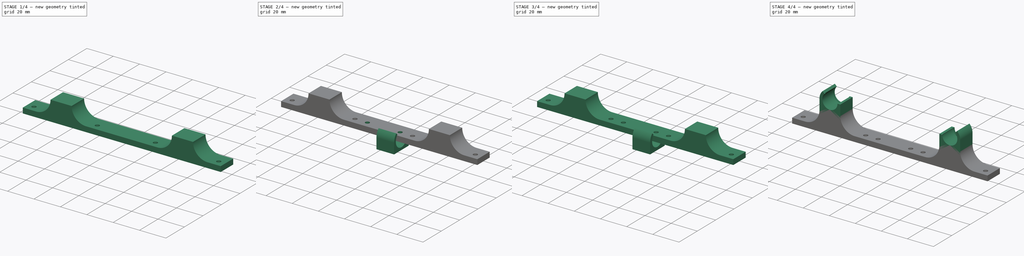
[diagram: build sequence overview — one tinted view per stage of 4, left to right]
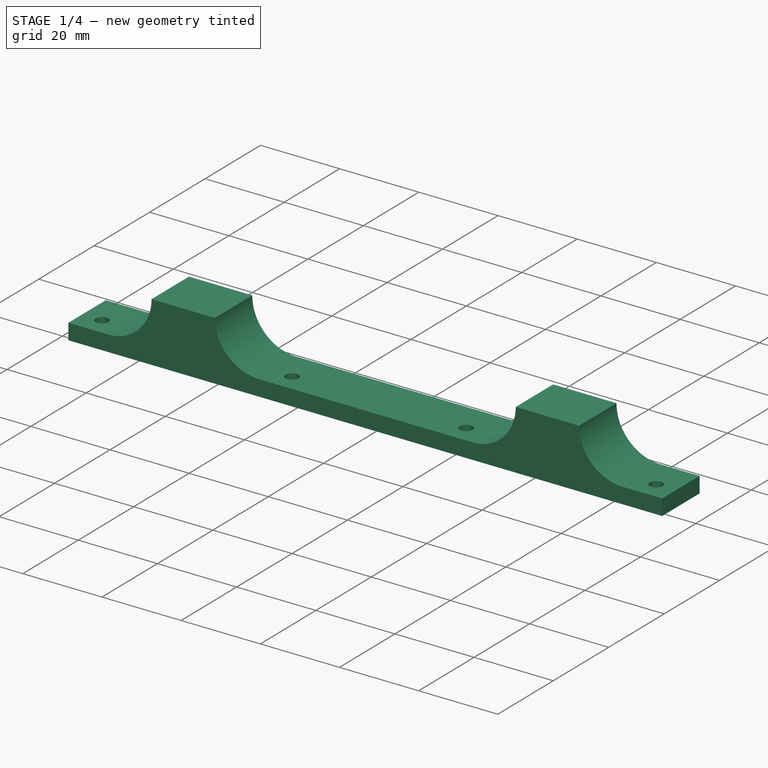
[diagram: stage 1 of 4 — iso view after this stage's code; geometry added in this stage tinted green]
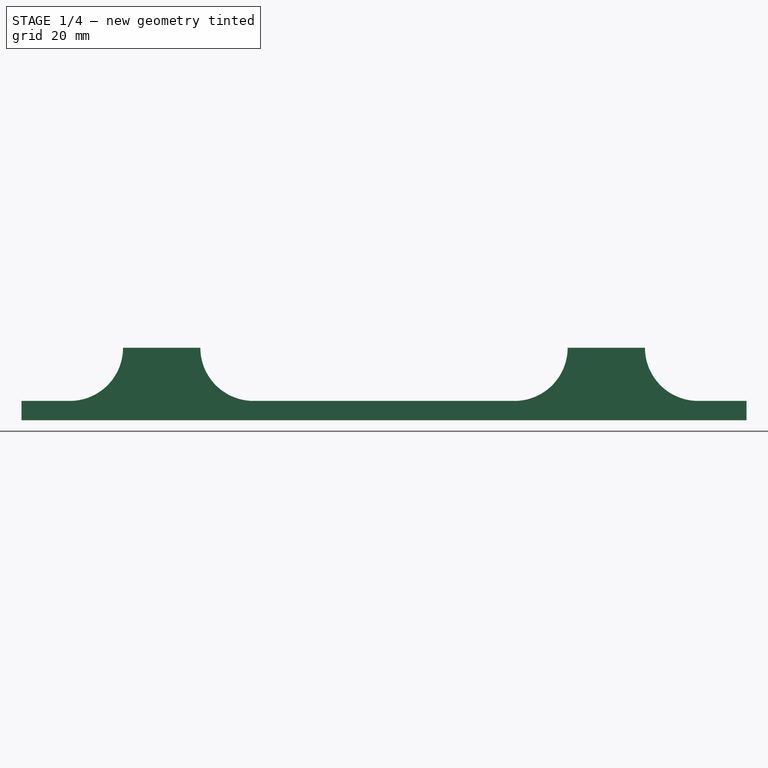
[diagram: stage 1 of 4 — front view after this stage's code; geometry added in this stage tinted green]
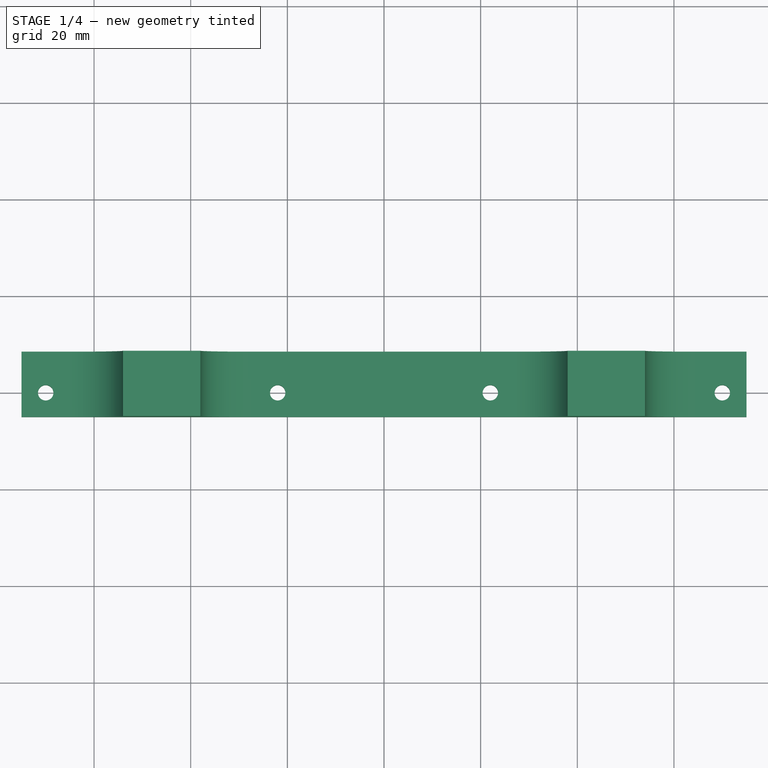
[diagram: stage 1 of 4 — top view after this stage's code; geometry added in this stage tinted green]
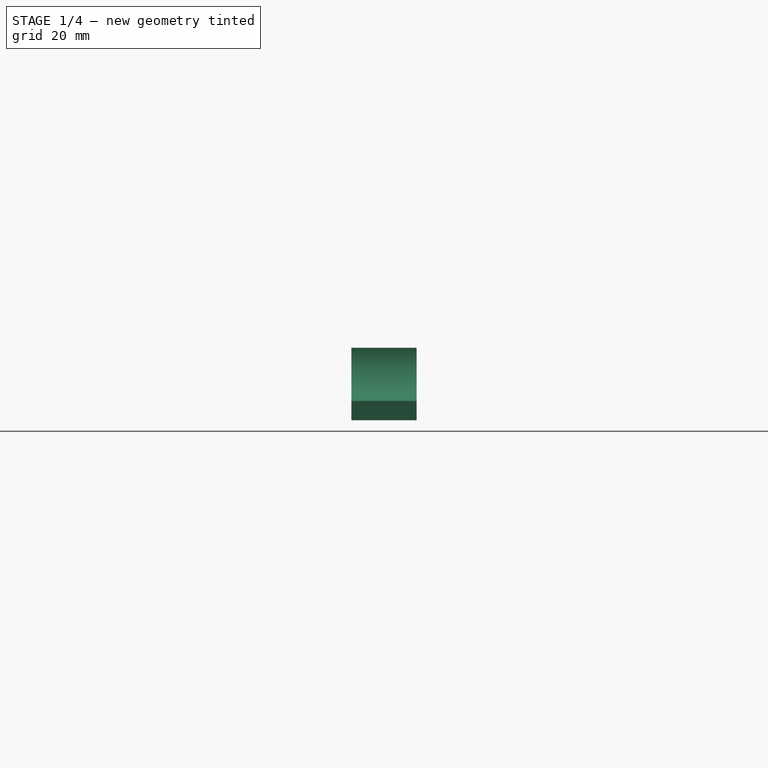
[diagram: stage 1 of 4 — right view after this stage's code; geometry added in this stage tinted green]
FCSTD DOCUMENT  (FreeCAD 0.18R14090 (Git))
Label: BedClamping1_Alt
License: All rights reserved
LicenseURL: http://en.wikipedia.org/wiki/All_rights_reserved
objects: Sketcher::SketchObject×7, PartDesign::Pad×5, PartDesign::Body×2, PartDesign::Pocket×2, PartDesign::Fillet×1, Part::Mirroring×1, Part::MultiFuse×1, App::Part×1, Part::FeaturePython×1
note: 27 computed .brp shape members not serialized (recipe doc carries the construction recipe); baked Part::Feature solids carry a one-line shape summary decoded from their .brp

FEATURE [Sketcher::SketchObject] Sketch  label="BC_BaseSketch"
  MapMode = 5
  Support = -> [XY_Plane001]
  sketch-geometry (8):
    g0: LineSegment StartX=-75 StartY=8.5 StartZ=0 EndX=75 EndY=8.5 EndZ=0
    g1: LineSegment StartX=75 StartY=8.5 StartZ=0 EndX=75 EndY=-5 EndZ=0
    g2: LineSegment StartX=75 StartY=-5 StartZ=0 EndX=-75 EndY=-5 EndZ=0
    g3: LineSegment StartX=-75 StartY=-5 StartZ=0 EndX=-75 EndY=8.5 EndZ=0
    g4: Circle CenterX=-70 CenterY=0 CenterZ=0 NormalX=0 NormalY=0 NormalZ=1 AngleXU=0 Radius=1.6
    g5: Circle CenterX=-22 CenterY=0 CenterZ=0 NormalX=0 NormalY=0 NormalZ=1 AngleXU=0 Radius=1.6
    g6: Circle CenterX=22 CenterY=0 CenterZ=0 NormalX=0 NormalY=0 NormalZ=1 AngleXU=0 Radius=1.6
    g7: Circle CenterX=70 CenterY=0 CenterZ=0 NormalX=0 NormalY=0 NormalZ=1 AngleXU=0 Radius=1.6
  constraints (21):
    c: Coincident(g0,g1)
    c: Coincident(g1,g2)
    c: Coincident(g2,g3)
    c: Coincident(g3,g0)
    c: Horizontal(g2)
    c: Vertical(g1)
    c: Symmetric(g0,g0,g-2)
    c: Distance(g0) = 150
    c: Distance(g3) = 13.5
    c: Symmetric(g6,g5,g-2)
    c: Symmetric(g7,g4,g-2)
    c: Distance(g7,g4) = 140
    c: Equal(g4,g5)
    c: Equal(g5,g6)
    c: Equal(g6,g7)
    c: Radius(g4) = 1.6
    c: Distance(g5,g6) = 44
    c: PointOnObject(g5,g-1)
    c: PointOnObject(g4,g-1)
    c: Vertical(g3)
    c: DistanceY(g-1,g2) = -5
FEATURE [PartDesign::Pad] Pad  label="BC_BasePad"
  Length = 4
  Length2 = 100
  Profile = -> Sketch
  Type = 0
FEATURE [Sketcher::SketchObject] Sketch001  label="BC_RodClipSketch"
  MapMode = 5
  Support = -> [XY_Plane001]
  sketch-geometry (8):
    g0: LineSegment StartX=-54 StartY=8.5 StartZ=0 EndX=-38 EndY=8.5 EndZ=0
    g1: LineSegment StartX=-38 StartY=8.5 StartZ=0 EndX=-38 EndY=-5 EndZ=0
    g2: LineSegment StartX=-38 StartY=-5 StartZ=0 EndX=-54 EndY=-5 EndZ=0
    g3: LineSegment StartX=-54 StartY=-5 StartZ=0 EndX=-54 EndY=8.5 EndZ=0
    g4: LineSegment StartX=38 StartY=8.5 StartZ=0 EndX=54 EndY=8.5 EndZ=0
    g5: LineSegment StartX=54 StartY=8.5 StartZ=0 EndX=54 EndY=-5 EndZ=0
    g6: LineSegment StartX=54 StartY=-5 StartZ=0 EndX=38 EndY=-5 EndZ=0
    g7: LineSegment StartX=38 StartY=-5 StartZ=0 EndX=38 EndY=8.5 EndZ=0
  constraints (23):
    c: Coincident(g0,g1)
    c: Coincident(g1,g2)
    c: Coincident(g2,g3)
    c: Coincident(g3,g0)
    c: Horizontal(g0)
    c: Horizontal(g2)
    c: Vertical(g1)
    c: Coincident(g4,g5)
    c: Coincident(g5,g6)
    c: Coincident(g6,g7)
    c: Coincident(g7,g4)
    c: Horizontal(g4)
    c: Vertical(g7)
    c: Equal(g1,g7)
    c: Symmetric(g0,g4,g-2)
    c: Equal(g4,g0)
    c: Distance(g0) = 16
    c: Distance(g3) = 13.5
    c: Distance(g2,g5) = 108
    c: Vertical(g5)
    c: Vertical(g3)
    c: Horizontal(g6)
    c: DistanceY(g-1,g2) = -5
FEATURE [PartDesign::Pad] Pad001  label="BC_RodClipPad"
  BaseFeature = -> Pad
  Length = 15
  Length2 = 100
  Profile = -> Sketch001
  Type = 0
FEATURE [PartDesign::Fillet] Fillet  label="BC_RodClipFillet"
  Base = -> Pad001 [Edge13,Edge40,Edge41,Edge69]
  BaseFeature = -> Pad001
  Radius = 10.99
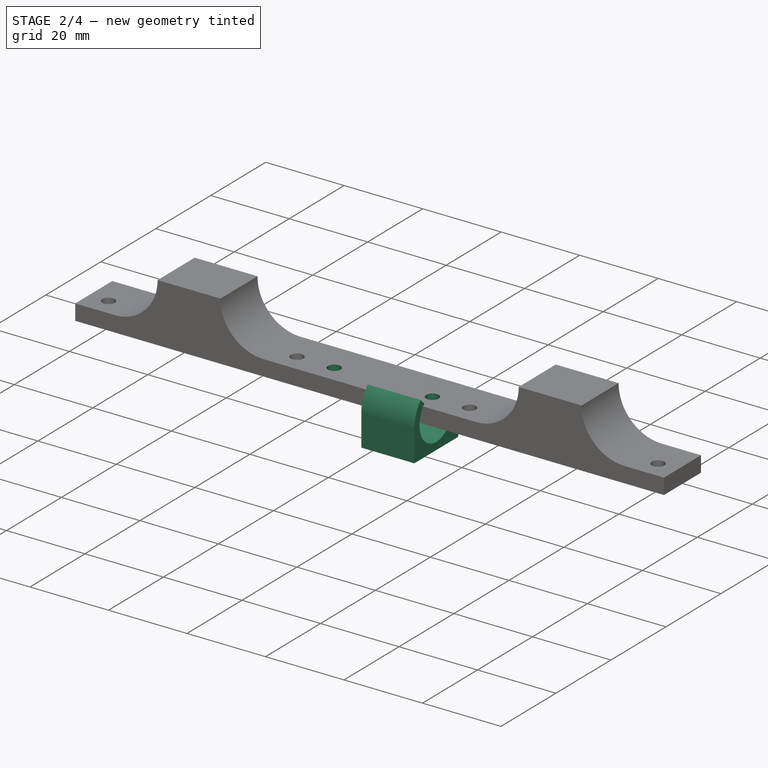
[diagram: stage 2 of 4 — iso view after this stage's code; geometry added in this stage tinted green]
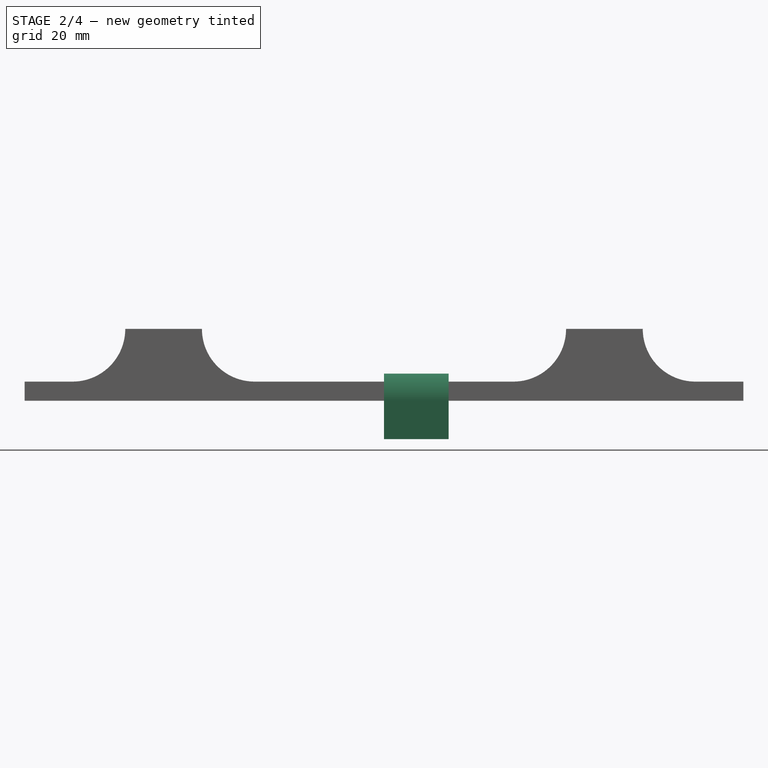
[diagram: stage 2 of 4 — front view after this stage's code; geometry added in this stage tinted green]
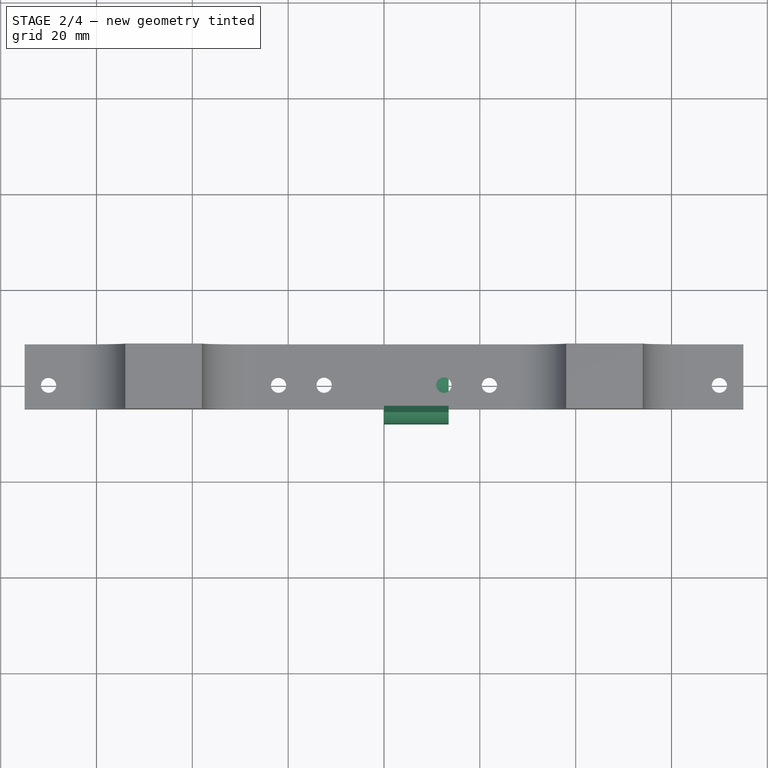
[diagram: stage 2 of 4 — top view after this stage's code; geometry added in this stage tinted green]
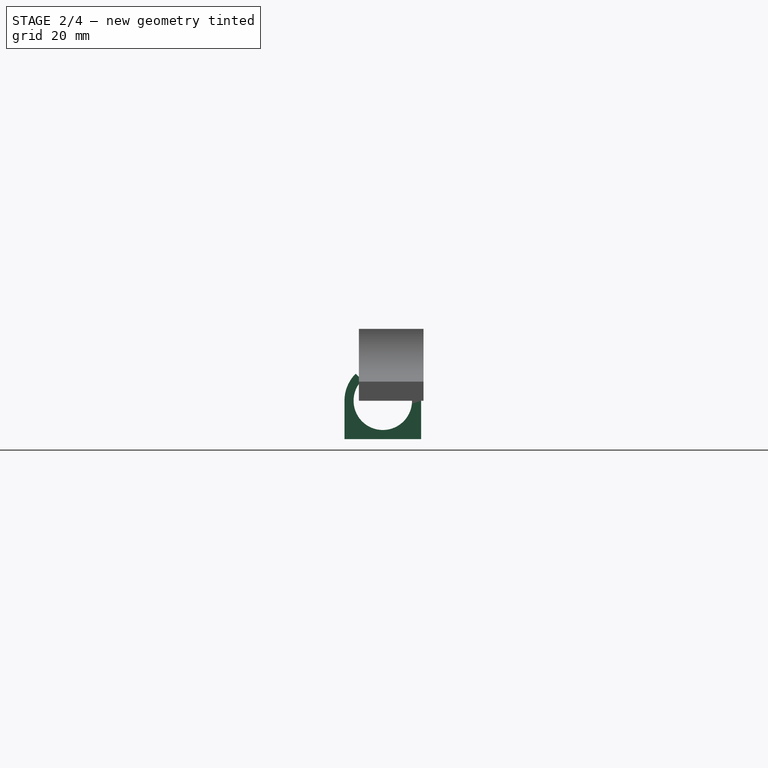
[diagram: stage 2 of 4 — right view after this stage's code; geometry added in this stage tinted green]
FEATURE [Sketcher::SketchObject] Sketch003  label="ClipSketch"
  MapMode = 5
  Placement = pos=(0,0,0) rot=(0.57735,0.57735,0.57735;2.0944rad)
  Support = -> [YZ_Plane002]
  sketch-geometry (8):
    g0: LineSegment StartX=-8 StartY=0 StartZ=0 EndX=-8 EndY=-8 EndZ=0
    g1: LineSegment StartX=8 StartY=0 StartZ=0 EndX=8 EndY=-8 EndZ=0
    g2: LineSegment StartX=-8 StartY=-8 StartZ=0 EndX=8 EndY=-8 EndZ=0
    g3: ArcOfCircle CenterX=0 CenterY=0 CenterZ=0 NormalX=0 NormalY=0 NormalZ=1 AngleXU=0 Radius=8 StartAngle=2.35619 EndAngle=3.14159
    g4: ArcOfCircle CenterX=0 CenterY=0 CenterZ=0 NormalX=0 NormalY=0 NormalZ=1 AngleXU=0 Radius=6.1 StartAngle=2.35619 EndAngle=3.14159
    g5: ArcOfCircle CenterX=0 CenterY=0 CenterZ=0 NormalX=0 NormalY=0 NormalZ=1 AngleXU=0 Radius=6.1 StartAngle=3.14159 EndAngle=6.28319
    g6: LineSegment StartX=-5.65685 StartY=5.65685 StartZ=0 EndX=-4.31335 EndY=4.31335 EndZ=0
    g7: LineSegment StartX=8 StartY=0 StartZ=0 EndX=6.1 EndY=0 EndZ=0
  constraints (22):
    c: Symmetric(g0,g1,g-2)
    c: Symmetric(g0,g1,g-2)
    c: PointOnObject(g0,g-1)
    c: Vertical(g0)
    c: Coincident(g2,g0)
    c: Coincident(g2,g1)
    c: Distance(g1) = 8
    c: Coincident(g3,g-1)
    c: Coincident(g3,g0)
    c: Radius(g3) = 8
    c: Angle(g3) = 0.785398
    c: Coincident(g4,g3)
    c: PointOnObject(g4,g-1)
    c: PointOnObject(g5,g-1)
    c: Coincident(g5,g3)
    c: Coincident(g5,g4)
    c: Coincident(g6,g3)
    c: Coincident(g6,g4)
    c: Coincident(g7,g1)
    c: Coincident(g7,g5)
    c: Radius(g5) = 6.1
    c: Perpendicular(g3,g6)
FEATURE [PartDesign::Pad] Pad002  label="ClipPad"
  Length = 13.5
  Length2 = 100
  Placement = pos=(0,0,0) rot=(0.57735,0.57735,0.57735;2.0944rad)
  Profile = -> Sketch003
  Type = 0
FEATURE [Sketcher::SketchObject] Sketch014  label="BC_BeltTensionerClipNutSketch"
  MapMode = 5
  Support = -> [XY_Plane001]
  sketch-geometry (14):
    g0: LineSegment StartX=-12.5 StartY=-3.23316 StartZ=0 EndX=-9.7 EndY=-1.61658 EndZ=0
    g1: LineSegment StartX=-9.7 StartY=-1.61658 StartZ=0 EndX=-9.7 EndY=1.61658 EndZ=0
    g2: LineSegment StartX=-9.7 StartY=1.61658 StartZ=0 EndX=-12.5 EndY=3.23316 EndZ=0
    g3: LineSegment StartX=-12.5 StartY=3.23316 StartZ=0 EndX=-15.3 EndY=1.61658 EndZ=0
    g4: LineSegment StartX=-15.3 StartY=1.61658 StartZ=0 EndX=-15.3 EndY=-1.61658 EndZ=0
    g5: LineSegment StartX=-15.3 StartY=-1.61658 StartZ=0 EndX=-12.5 EndY=-3.23316 EndZ=0
    g6: Circle [constr] CenterX=-12.5 CenterY=0 CenterZ=0 NormalX=0 NormalY=0 NormalZ=1 AngleXU=0 Radius=3.23316
    g7: LineSegment StartX=12.5 StartY=-3.23316 StartZ=0 EndX=15.3 EndY=-1.61658 EndZ=0
    g8: LineSegment StartX=15.3 StartY=-1.61658 StartZ=0 EndX=15.3 EndY=1.61658 EndZ=0
    g9: LineSegment StartX=15.3 StartY=1.61658 StartZ=0 EndX=12.5 EndY=3.23316 EndZ=0
    g10: LineSegment StartX=12.5 StartY=3.23316 StartZ=0 EndX=9.7 EndY=1.61658 EndZ=0
    g11: LineSegment StartX=9.7 StartY=1.61658 StartZ=0 EndX=9.7 EndY=-1.61658 EndZ=0
    g12: LineSegment StartX=9.7 StartY=-1.61658 StartZ=0 EndX=12.5 EndY=-3.23316 EndZ=0
    g13: Circle [constr] CenterX=12.5 CenterY=0 CenterZ=0 NormalX=0 NormalY=0 NormalZ=1 AngleXU=0 Radius=3.23316
  constraints (33):
    c: Coincident(g0,g1)
    c: Coincident(g1,g2)
    c: Coincident(g2,g3)
    c: Coincident(g3,g4)
    c: Coincident(g4,g5)
    c: Coincident(g5,g0)
    c: Equal(g0, g1-g5) x5
    c: PointOnObject(g0,g6)
    c: PointOnObject(g1,g6)
    c: PointOnObject(g2,g6)
    c: PointOnObject(g3,g6)
    c: PointOnObject(g4,g6)
    c: PointOnObject(g5,g6)
    c: PointOnObject(g6,g-1)
    c: Coincident(g7,g8)
    c: Coincident(g8,g9)
    c: Coincident(g9,g10)
    c: Coincident(g10,g11)
    c: Coincident(g11,g12)
    c: Coincident(g12,g7)
    c: Equal(g7, g8-g12) x5
    c: PointOnObject(g7,g13)
    c: PointOnObject(g8,g13)
    c: PointOnObject(g9,g13)
    c: PointOnObject(g10,g13)
    c: PointOnObject(g11,g13)
    c: PointOnObject(g12,g13)
    c: Equal(g1,g11)
    c: Vertical(g1)
    c: Vertical(g11)
    c: Distance(g1,g3) = 5.6
    c: Symmetric(g13,g6,g-2)
    c: Distance(g6,g13) = 25
FEATURE [PartDesign::Pocket] Pocket  label="BC_BeltTensionerClipNutPocket"
  BaseFeature = -> Fillet
  Length = 2.5
  Length2 = 100
  Profile = -> Sketch014
  Reversed = true
  Type = 0
FEATURE [Sketcher::SketchObject] Sketch015  label="BC_BeltTensionerClipHoleSketch"
  MapMode = 5
  Support = -> [XY_Plane001]
  sketch-geometry (2):
    g0: Circle CenterX=-12.5 CenterY=0 CenterZ=0 NormalX=0 NormalY=0 NormalZ=1 AngleXU=0 Radius=1.6
    g1: Circle CenterX=12.5 CenterY=0 CenterZ=0 NormalX=0 NormalY=0 NormalZ=1 AngleXU=0 Radius=1.6
  constraints (5):
    c: PointOnObject(g0,g-1)
    c: Equal(g1,g0)
    c: Radius(g0) = 1.6
    c: Symmetric(g0,g1,g-2)
    c: Distance(g0,g1) = 25
FEATURE [PartDesign::Pocket] Pocket001  label="BC_BeltTensionerClipHolePocket"
  BaseFeature = -> Pocket
  Length = 5
  Length2 = 100
  Profile = -> Sketch015
  Reversed = true
  Type = 1
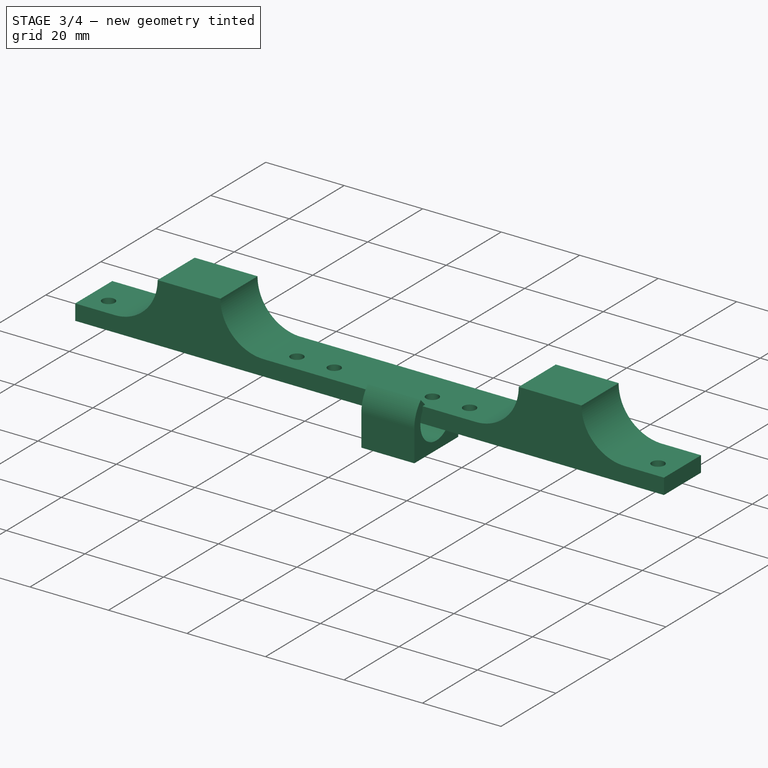
[diagram: stage 3 of 4 — iso view after this stage's code; geometry added in this stage tinted green]
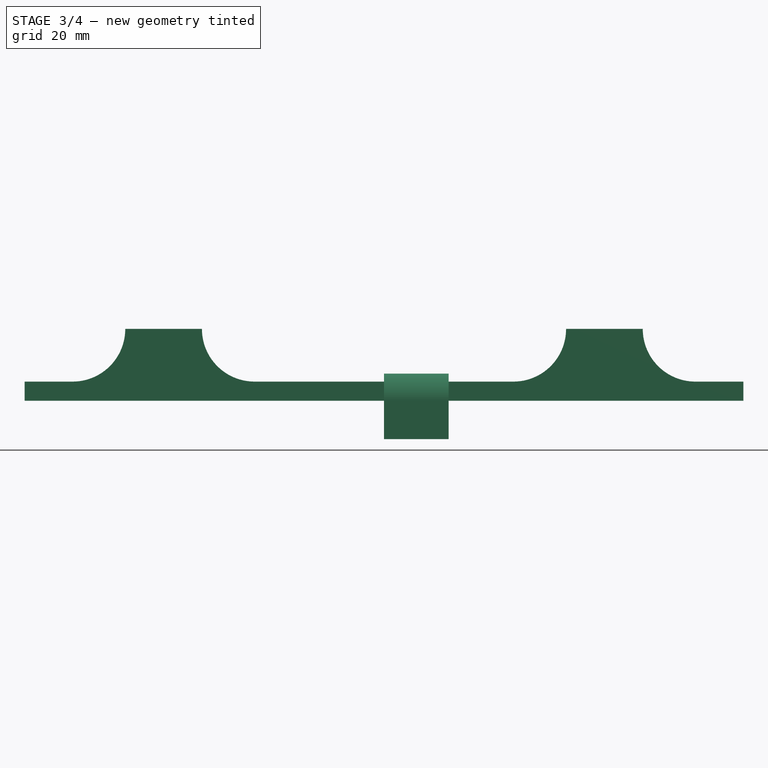
[diagram: stage 3 of 4 — front view after this stage's code; geometry added in this stage tinted green]
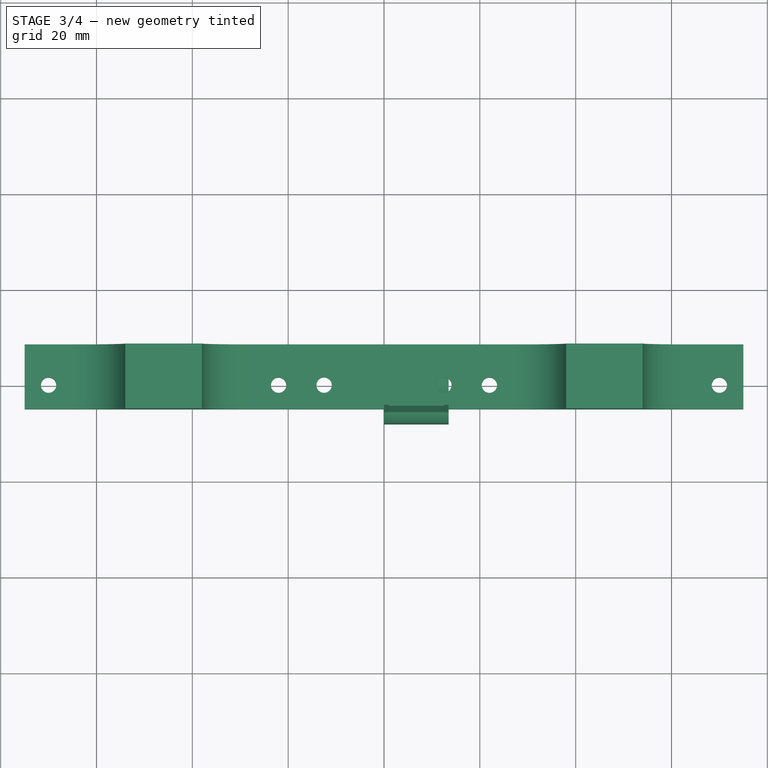
[diagram: stage 3 of 4 — top view after this stage's code; geometry added in this stage tinted green]
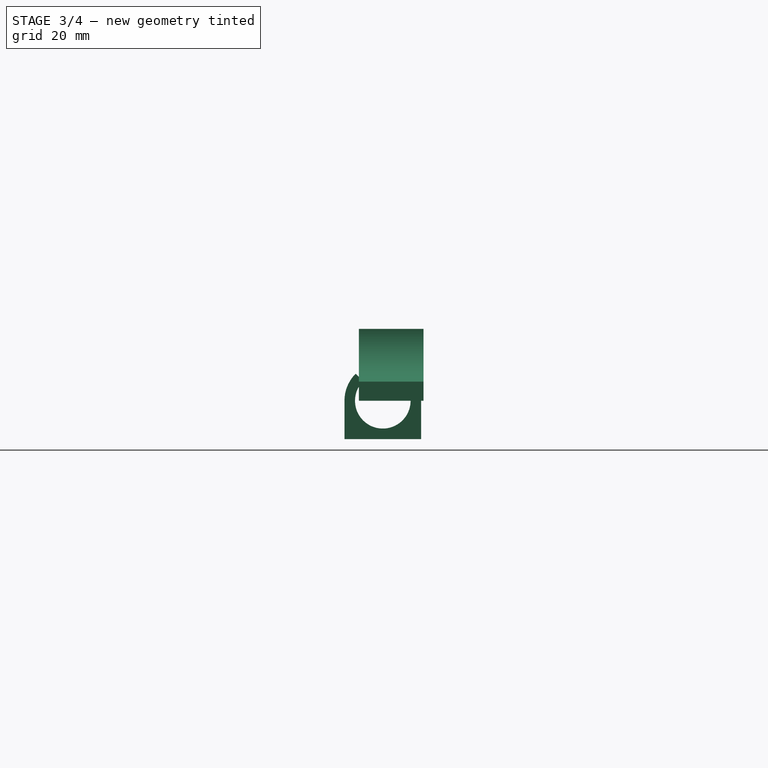
[diagram: stage 3 of 4 — right view after this stage's code; geometry added in this stage tinted green]
FEATURE [Sketcher::SketchObject] Sketch002  label="ClipNotch1Sketch"
  ExternalGeometry = -> [Pad002]
  MapMode = 5
  Placement = pos=(0,0,0) rot=(0.57735,0.57735,0.57735;2.0944rad)
  Support = -> [YZ_Plane002]
  sketch-geometry (4):
    g0: ArcOfCircle CenterX=0 CenterY=0 CenterZ=0 NormalX=0 NormalY=0 NormalZ=1 AngleXU=0 Radius=5.8 StartAngle=2.35619 EndAngle=6.28319
    g1: ArcOfCircle CenterX=0 CenterY=0 CenterZ=0 NormalX=0 NormalY=0 NormalZ=1 AngleXU=0 Radius=6.1 StartAngle=2.35619 EndAngle=6.28319
    g2: LineSegment StartX=-4.10122 StartY=4.10122 StartZ=0 EndX=-4.31335 EndY=4.31335 EndZ=0
    g3: LineSegment StartX=5.8 StartY=0 StartZ=0 EndX=6.1 EndY=0 EndZ=0
  constraints (11):
    c: Coincident(g1,g-4)
    c: Coincident(g1,g-3)
    c: Coincident(g2,g1)
    c: Perpendicular(g1,g2)
    c: Coincident(g3,g1)
    c: Coincident(g0,g3)
    c: Coincident(g0,g2)
    c: Coincident(g0,g-1)
    c: PointOnObject(g0,g-1)
    c: Perpendicular(g1,g3)
    c: Radius(g0) = 5.8
FEATURE [PartDesign::Pad] Pad003  label="ClipNotch1Pad"
  BaseFeature = -> Pad002
  Length = 1
  Length2 = 100
  Placement = pos=(0,0,0) rot=(0.57735,0.57735,0.57735;2.0944rad)
  Profile = -> Sketch002
  Type = 0
FEATURE [Sketcher::SketchObject] Sketch013  label="ClipNotch2Sketch"
  ExternalGeometry = -> [Pad003]
  MapMode = 5
  Placement = pos=(13.5,-2e-12,2e-12) rot=(0.57735,0.57735,0.57735;2.0944rad)
  Support = -> [Pad003]
  sketch-geometry (4):
    g0: ArcOfCircle CenterX=0 CenterY=0 CenterZ=0 NormalX=0 NormalY=0 NormalZ=1 AngleXU=0 Radius=6.1 StartAngle=2.35619 EndAngle=6.28319
    g1: ArcOfCircle CenterX=0 CenterY=0 CenterZ=0 NormalX=0 NormalY=0 NormalZ=1 AngleXU=0 Radius=5.8 StartAngle=2.35619 EndAngle=6.28319
    g2: LineSegment StartX=-4.31335 StartY=4.31335 StartZ=0 EndX=-4.10122 EndY=4.10122 EndZ=0
    g3: LineSegment StartX=5.8 StartY=0 StartZ=0 EndX=6.1 EndY=0 EndZ=0
  constraints (10):
    c: Coincident(g0,g-1)
    c: Coincident(g0,g-3)
    c: PointOnObject(g0,g-1)
    c: Coincident(g1,g0)
    c: Coincident(g1,g-4)
    c: PointOnObject(g1,g-1)
    c: Coincident(g2,g0)
    c: Coincident(g2,g1)
    c: Coincident(g3,g1)
    c: Coincident(g3,g0)
FEATURE [PartDesign::Pad] Pad008  label="ClipNotch2Pad"
  BaseFeature = -> Pad003
  Length = 1
  Length2 = 100
  Placement = pos=(0,0,0) rot=(0.57735,0.57735,0.57735;2.0944rad)
  Profile = -> Sketch013
  Reversed = true
  Type = 0
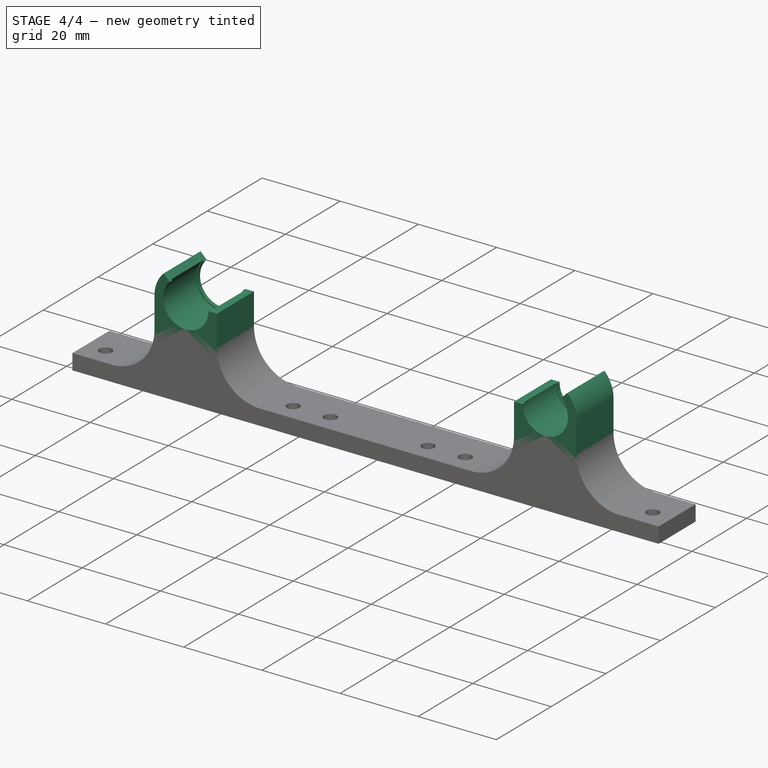
[diagram: stage 4 of 4 — iso view after this stage's code; geometry added in this stage tinted green]
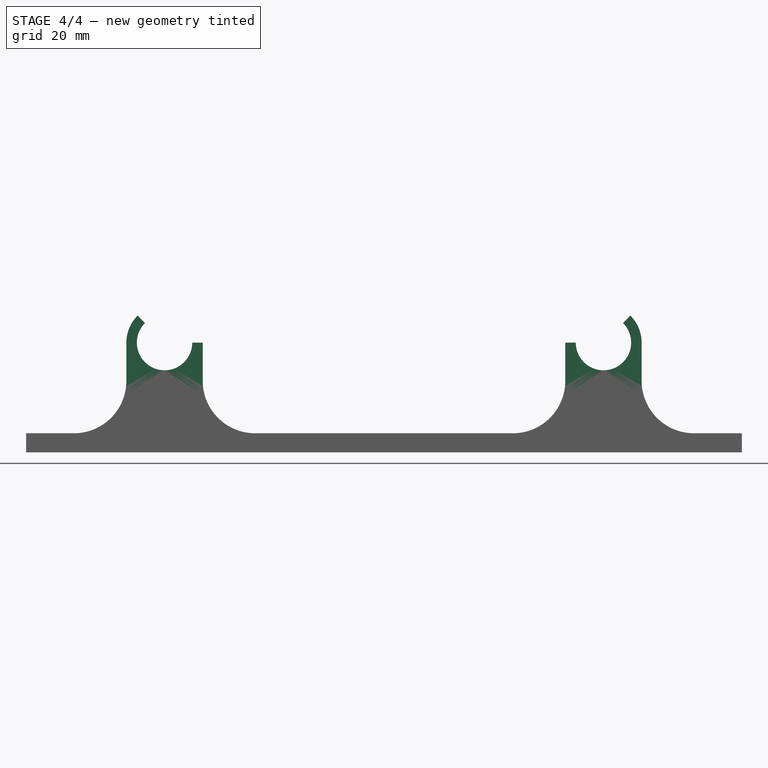
[diagram: stage 4 of 4 — front view after this stage's code; geometry added in this stage tinted green]
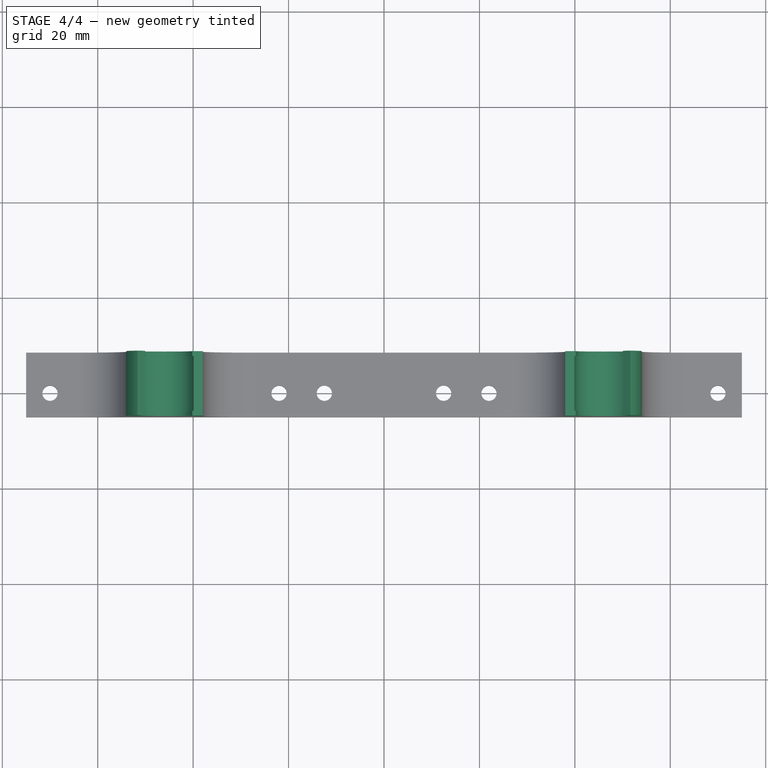
[diagram: stage 4 of 4 — top view after this stage's code; geometry added in this stage tinted green]
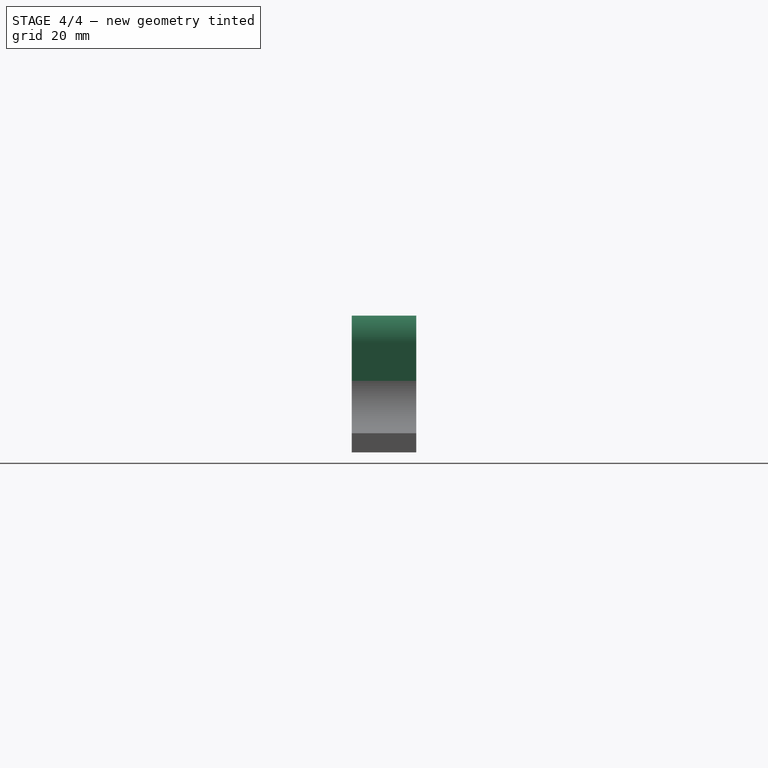
[diagram: stage 4 of 4 — right view after this stage's code; geometry added in this stage tinted green]
FEATURE [PartDesign::Body] Body001  label="Clip_LM6UU"
  Group = -> [Sketch003,Pad002,Sketch002,Pad003,Sketch013,Pad008]
  Origin = -> Origin002
  Placement = pos=(-46,8.5,23) rot=(0,0,-1;1.5708rad)
  Tip = -> Pad008
FEATURE [Part::Mirroring] Part__Mirroring  label="Clip_LM6UU_Mirror"
  Base = (0,0,0)
  Normal = (1,0,0)
  Source = -> Body001
FEATURE [PartDesign::Body] Body  label="BedClampingBody"
  Group = -> [Sketch,Pad,Sketch001,Pad001,Fillet,Sketch014,Pocket,Sketch015,Pocket001]
  Origin = -> Origin001
  Tip = -> Pocket001
FEATURE [Part::MultiFuse] Fusion  label="BedClampingFusion"
  Shapes = -> [Body,Part__Mirroring,Body001]
FEATURE [App::Part] Part  label="BedClampingPart"
  Group = -> [Body,Body001,Part__Mirroring,Fusion]
  License = CC BY 3.0
  LicenseURL = http://creativecommons.org/licenses/by/3.0/
  Origin = -> Origin
FEATURE [Part::FeaturePython] refine  label="BedClamping_Refined"  # WARN: FeaturePython — macro-defined, semantics opaque (R4)
  Base = -> Fusion
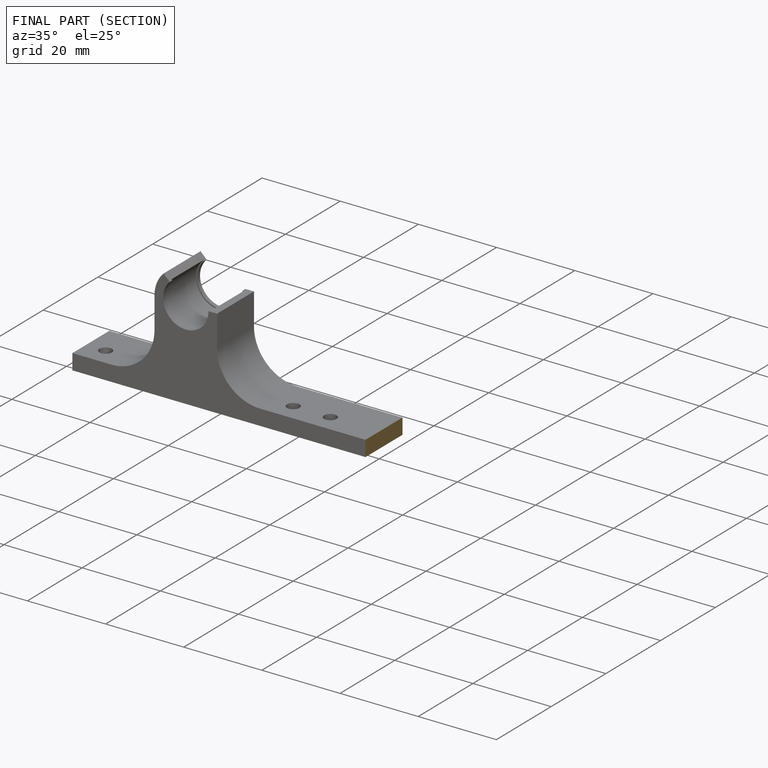
[diagram: finished part — half-section view (interior)]
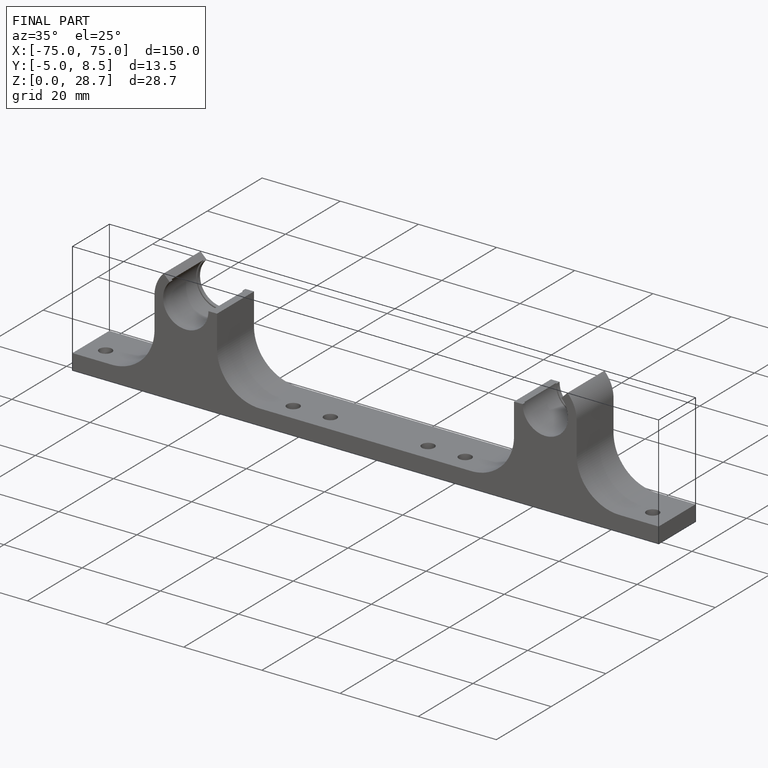
[diagram: finished part — iso view with bounding-box wireframe]
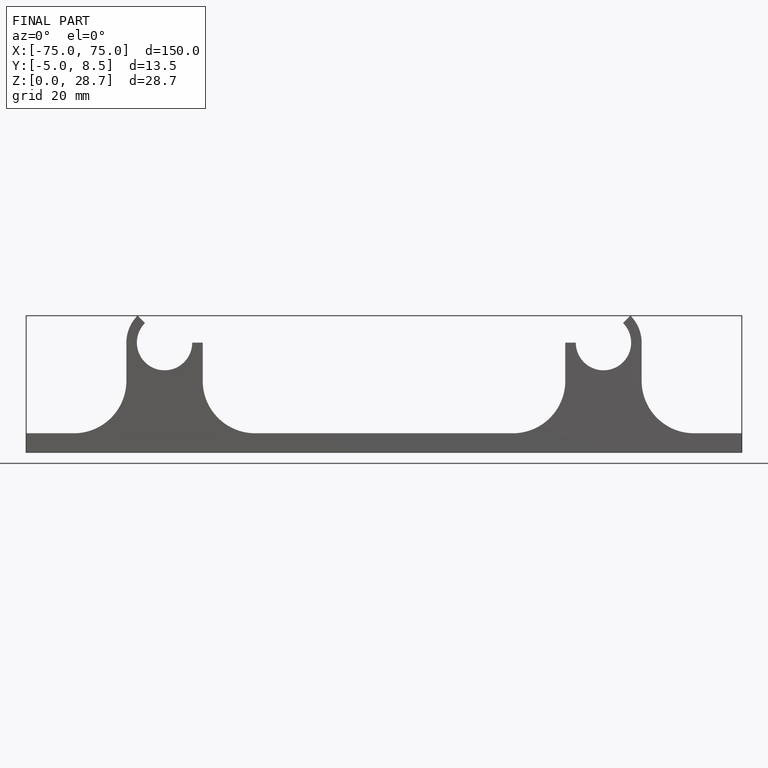
[diagram: finished part — front view with bounding-box wireframe]
